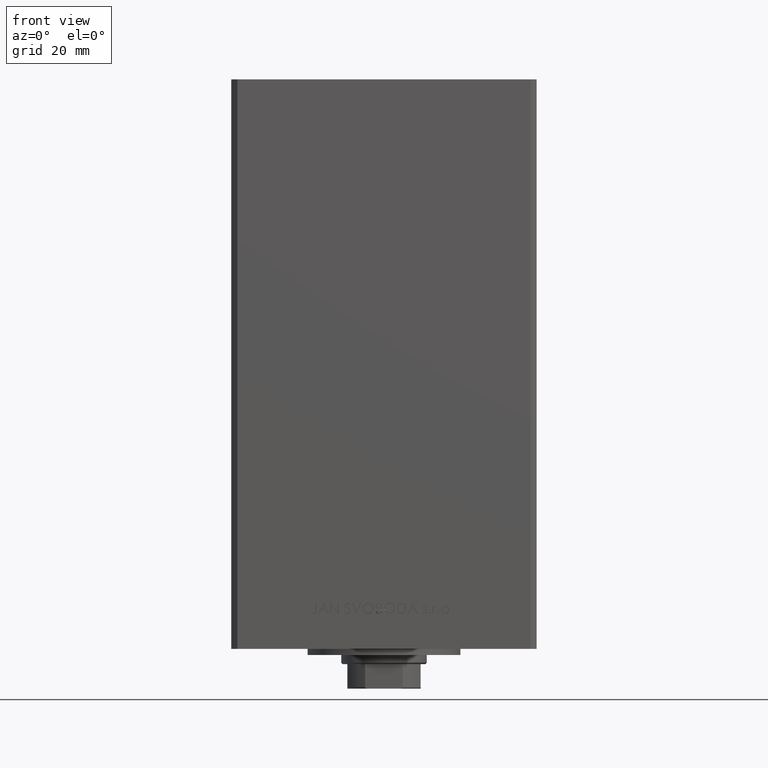
[diagram: clean part render]
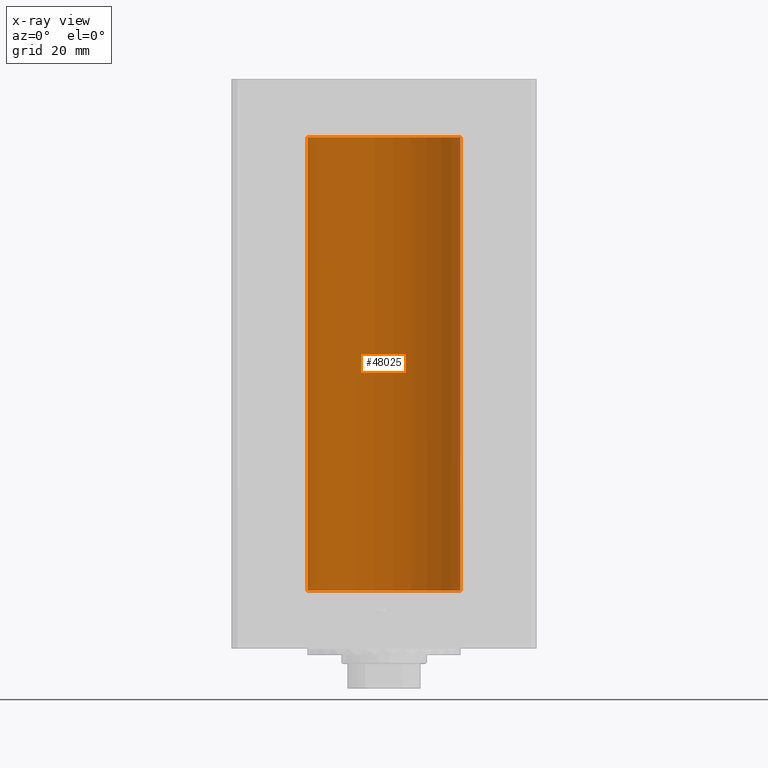
[diagram: x-ray — body ghosted, one internal face saturated and labeled with its STEP entity id]
A machine part, front view, then the same camera in x-ray: the body is ghosted and one INTERNAL B-rep face — a face not visible from any outside direction — is saturated and labeled: STEP entity #48025.
In plain terms, the highlighted cylindrical surface (partial cylindrical patch) has radius 25 mm, axis along (-0, -0, -1).
Its self-contained STEP definition (entity closure, byte-faithful):
#2492 = DIRECTION ( 'NONE',  ( 1.000000000000000000, 0.000000000000000000, 0.000000000000000000 ) ) ;
#4818 = AXIS2_PLACEMENT_3D ( 'NONE', #42281, #27238, #7912 ) ;
#5111 = CYLINDRICAL_SURFACE ( 'NONE', #36645, 25.00000000000000000 ) ;
#7564 = VERTEX_POINT ( 'NONE', #46399 ) ;
#7882 = LINE ( 'NONE', #15910, #38127 ) ;
#7912 = DIRECTION ( 'NONE',  ( 1.000000000000000000, 0.000000000000000000, 0.000000000000000000 ) ) ;
#8455 = ORIENTED_EDGE ( 'NONE', *, *, #48367, .F. ) ;
#10519 = CARTESIAN_POINT ( 'NONE',  ( 25.00000000000000000, 3.061616997868383043E-15, 148.5000000000000000 ) ) ;
#10771 = VERTEX_POINT ( 'NONE', #49601 ) ;
#11318 = ORIENTED_EDGE ( 'NONE', *, *, #25581, .T. ) ;
#13602 = DIRECTION ( 'NONE',  ( -1.000000000000000000, 0.000000000000000000, 0.000000000000000000 ) ) ;
#13787 = DIRECTION ( 'NONE',  ( -0.000000000000000000, 0.000000000000000000, 1.000000000000000000 ) ) ;
#15910 = CARTESIAN_POINT ( 'NONE',  ( -25.00000000000000000, 0.000000000000000000, 148.5000000000000000 ) ) ;
#17373 = FACE_OUTER_BOUND ( 'NONE', #41591, .T. ) ;
#18032 = DIRECTION ( 'NONE',  ( -0.000000000000000000, -0.000000000000000000, -1.000000000000000000 ) ) ;
#23442 = DIRECTION ( 'NONE',  ( -0.000000000000000000, -0.000000000000000000, -1.000000000000000000 ) ) ;
#25562 = LINE ( 'NONE', #40858, #28176 ) ;
#25581 = EDGE_CURVE ( 'NONE', #37292, #7564, #40081, .T. ) ;
#27238 = DIRECTION ( 'NONE',  ( -0.000000000000000000, 0.000000000000000000, 1.000000000000000000 ) ) ;
#28176 = VECTOR ( 'NONE', #18032, 1000.000000000000000 ) ;
#28844 = ORIENTED_EDGE ( 'NONE', *, *, #29062, .F. ) ;
#28914 = CARTESIAN_POINT ( 'NONE',  ( 0.000000000000000000, 0.000000000000000000, 148.5000000000000000 ) ) ;
#29062 = EDGE_CURVE ( 'NONE', #37292, #10771, #25562, .T. ) ;
#34245 = CIRCLE ( 'NONE', #40664, 25.00000000000000000 ) ;
#36645 = AXIS2_PLACEMENT_3D ( 'NONE', #28914, #43963, #13602 ) ;
#37292 = VERTEX_POINT ( 'NONE', #10519 ) ;
#38127 = VECTOR ( 'NONE', #23442, 1000.000000000000000 ) ;
#40081 = CIRCLE ( 'NONE', #4818, 25.00000000000000000 ) ;
#40664 = AXIS2_PLACEMENT_3D ( 'NONE', #41135, #13787, #2492 ) ;
#40858 = CARTESIAN_POINT ( 'NONE',  ( 25.00000000000000000, 3.061616997868383043E-15, 148.5000000000000000 ) ) ;
#41135 = CARTESIAN_POINT ( 'NONE',  ( 0.000000000000000000, 0.000000000000000000, 0.000000000000000000 ) ) ;
#41591 = EDGE_LOOP ( 'NONE', ( #28844, #11318, #46011, #8455 ) ) ;
#42281 = CARTESIAN_POINT ( 'NONE',  ( 0.000000000000000000, 0.000000000000000000, 148.5000000000000000 ) ) ;
#43963 = DIRECTION ( 'NONE',  ( -0.000000000000000000, -0.000000000000000000, -1.000000000000000000 ) ) ;
#44034 = EDGE_CURVE ( 'NONE', #7564, #44240, #7882, .T. ) ;
#44240 = VERTEX_POINT ( 'NONE', #48473 ) ;
#46011 = ORIENTED_EDGE ( 'NONE', *, *, #44034, .T. ) ;
#46399 = CARTESIAN_POINT ( 'NONE',  ( -25.00000000000000000, 0.000000000000000000, 148.5000000000000000 ) ) ;
#48025 = ADVANCED_FACE ( 'NONE', ( #17373 ), #5111, .F. ) ;
#48367 = EDGE_CURVE ( 'NONE', #10771, #44240, #34245, .T. ) ;
#48473 = CARTESIAN_POINT ( 'NONE',  ( -25.00000000000000000, 0.000000000000000000, 0.000000000000000000 ) ) ;
#49601 = CARTESIAN_POINT ( 'NONE',  ( 25.00000000000000000, 3.061616997868383043E-15, 0.000000000000000000 ) ) ;